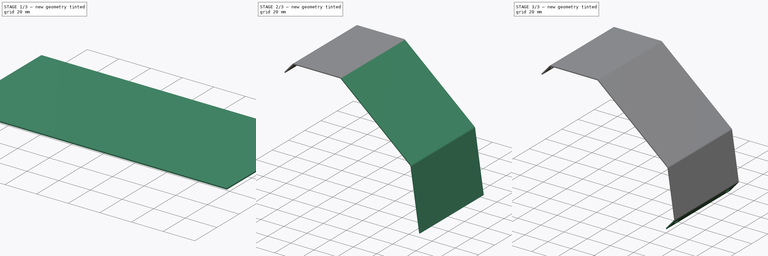
[diagram: build sequence overview — one tinted view per stage of 3, left to right]
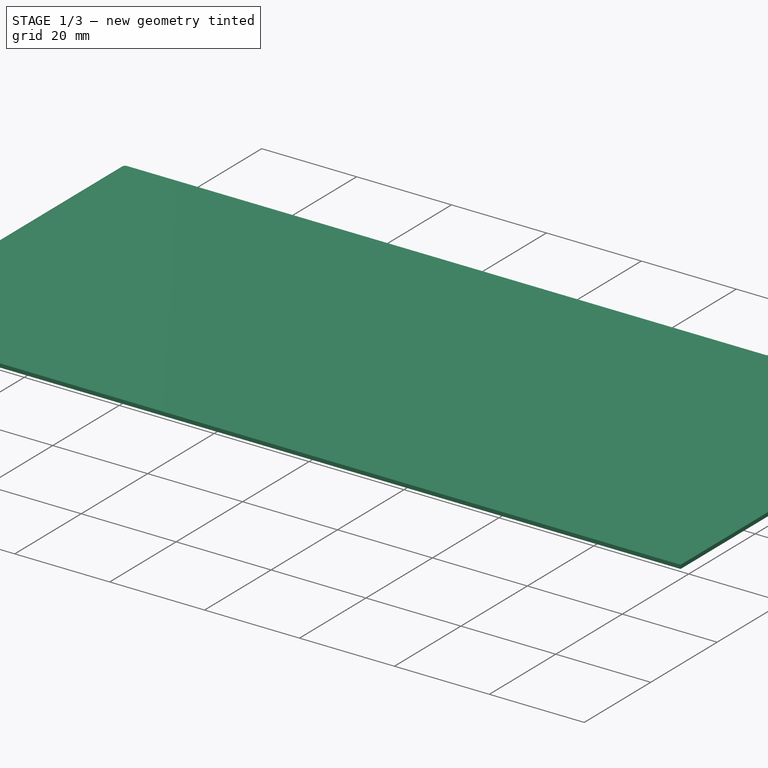
[diagram: stage 1 of 3 — iso view after this stage's code; geometry added in this stage tinted green]
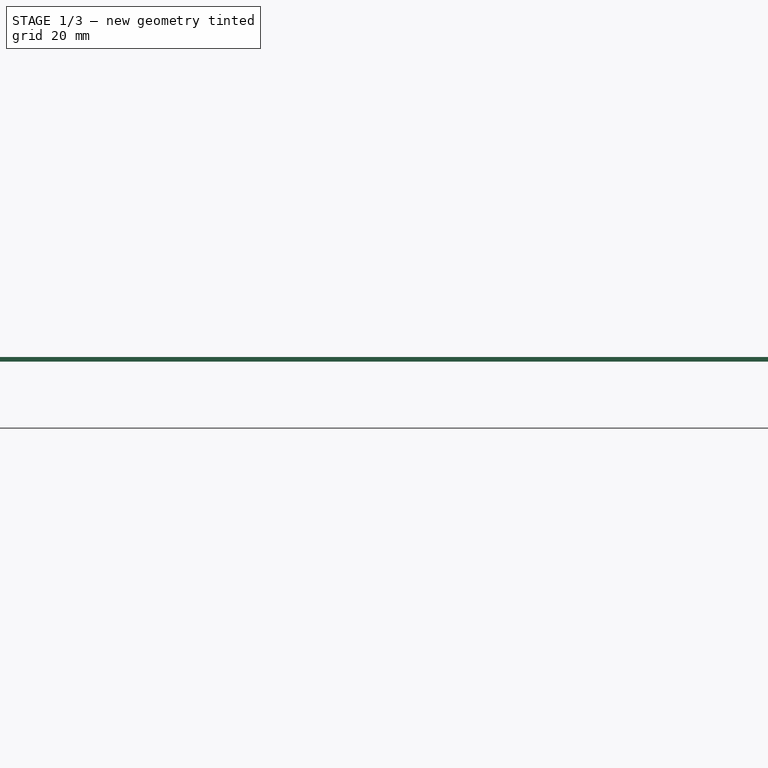
[diagram: stage 1 of 3 — front view after this stage's code; geometry added in this stage tinted green]
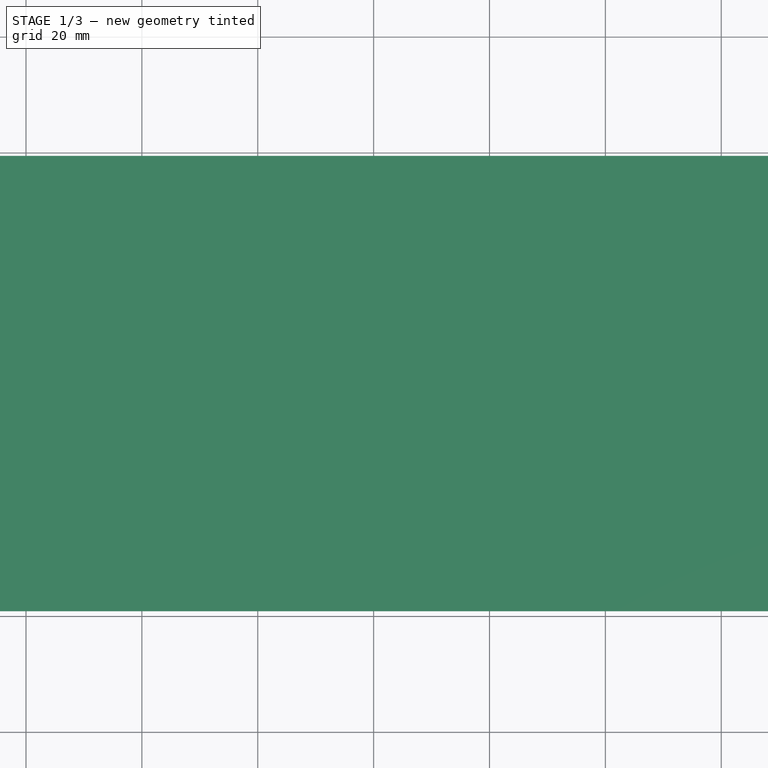
[diagram: stage 1 of 3 — top view after this stage's code; geometry added in this stage tinted green]
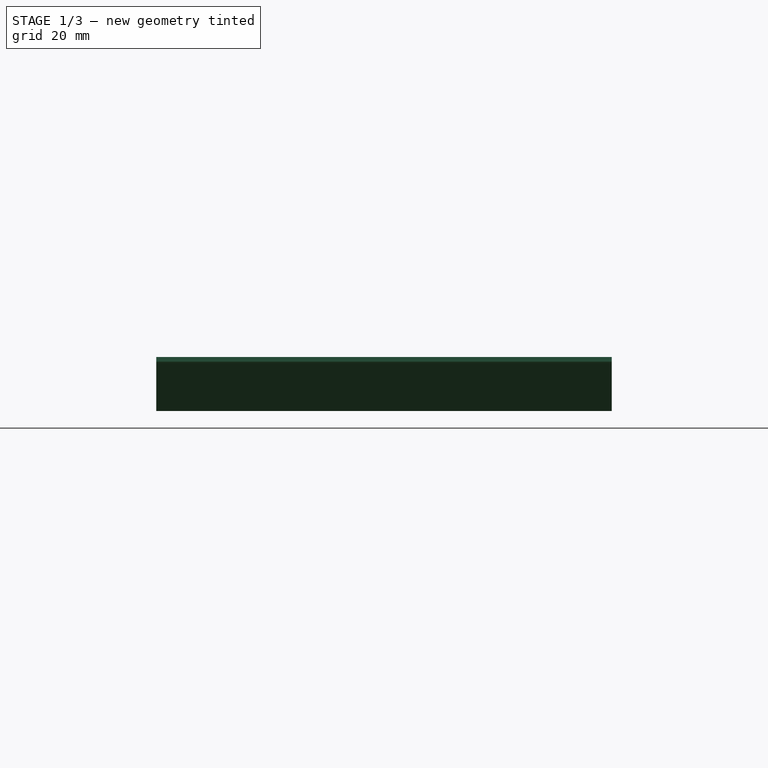
[diagram: stage 1 of 3 — right view after this stage's code; geometry added in this stage tinted green]
FCSTD DOCUMENT  (FreeCAD 0.19R24291 (Git))
Label: canopy
License: All rights reserved
LicenseURL: http://en.wikipedia.org/wiki/All_rights_reserved
objects: Sketcher::SketchObject×7, PartDesign::FeaturePython×5, PartDesign::Pocket×1, PartDesign::Body×1, Part::Feature×1
note: 16 computed .brp shape members not serialized (recipe doc carries the construction recipe); baked Part::Feature solids carry a one-line shape summary decoded from their .brp

FEATURE [Sketcher::SketchObject] Sketch002  label="canopy_outline"
  FullyConstrained = true
  MapMode = 5
  sketch-geometry (12):
    g0: LineSegment StartX=-40 StartY=39.3 StartZ=0 EndX=40 EndY=39.3 EndZ=0
    g1: LineSegment StartX=79.81 StartY=39.3 StartZ=0 EndX=91.81 EndY=39.3 EndZ=0
    g2: LineSegment StartX=-40 StartY=39.3 StartZ=0 EndX=-79.81 EndY=39.3 EndZ=0
    g3: LineSegment StartX=40 StartY=39.3 StartZ=0 EndX=79.81 EndY=39.3 EndZ=0
    g4: LineSegment StartX=-79.81 StartY=39.3 StartZ=0 EndX=-91.81 EndY=39.3 EndZ=0
    g5: LineSegment StartX=-40 StartY=-39.3 StartZ=0 EndX=40 EndY=-39.3 EndZ=0
    g6: LineSegment StartX=79.81 StartY=-39.3 StartZ=0 EndX=91.81 EndY=-39.3 EndZ=0
    g7: LineSegment StartX=-40 StartY=-39.3 StartZ=0 EndX=-79.81 EndY=-39.3 EndZ=0
    g8: LineSegment StartX=40 StartY=-39.3 StartZ=0 EndX=79.81 EndY=-39.3 EndZ=0
    g9: LineSegment StartX=-79.81 StartY=-39.3 StartZ=0 EndX=-91.81 EndY=-39.3 EndZ=0
    g10: LineSegment StartX=-91.81 StartY=39.3 StartZ=0 EndX=-91.81 EndY=-39.3 EndZ=0
    g11: LineSegment StartX=91.81 StartY=39.3 StartZ=0 EndX=91.81 EndY=-39.3 EndZ=0
  constraints (35):
    c: Coincident(g2,g0)
    c: Coincident(g3,g0)
    c: Coincident(g3,g1)
    c: Distance(g3) = 39.81
    c: Distance(g1) = 12
    c: DistanceX(g0,g0) = 80
    c: Distance(g2) = 39.81
    c: Horizontal(g1)
    c: Horizontal(g3)
    c: Horizontal(g0)
    c: Horizontal(g2)
    c: Coincident(g4,g2)
    c: Horizontal(g4)
    c: DistanceX(g4,g4) = 12
    c: Coincident(g7,g5)
    c: Coincident(g8,g5)
    c: Coincident(g8,g6)
    c: Equal(g3,g8) = 39.81
    c: Equal(g1,g6) = 10
    c: Equal(g0,g5) = 80
    c: Equal(g2,g7) = 39.81
    c: Horizontal(g6)
    c: Horizontal(g8)
    c: Horizontal(g5)
    c: Horizontal(g7)
    c: Coincident(g9,g7)
    c: Horizontal(g9)
    c: Equal(g4,g9) = 10
    c: Vertical(g4,g9)
    c: Coincident(g10,g4)
    c: Coincident(g10,g9)
    c: Coincident(g11,g1)
    c: Coincident(g11,g6)
    c: DistanceY(g10,g10) = 78.6
    c: Symmetric(g1,g9,g-1)
FEATURE [PartDesign::FeaturePython] BaseBend  # WARN: FeaturePython — macro-defined, semantics opaque (R4)
  BendSide = 0
  BendSketch = -> Sketch002
  MidPlane = false
  Reverse = false
  length = 100
  radius = 1
  thickness = 0.8
FEATURE [Sketcher::SketchObject] Sketch
  ExternalGeometry = -> [BaseBend]
  FullyConstrained = true
  MapMode = 5
  Placement = pos=(0,0,0) rot=(1,0,0;3.14159rad)
  Support = -> [BaseBend]
  sketch-geometry (1):
    g0: LineSegment StartX=-79.81 StartY=39.3 StartZ=0 EndX=-79.81 EndY=-39.3 EndZ=0
  constraints (2):
    c: Coincident(g0,g-3)
    c: Coincident(g0,g-4)
FEATURE [Sketcher::SketchObject] Sketch003
  ExternalGeometry = -> [BaseBend]
  FullyConstrained = true
  MapMode = 5
  Placement = pos=(0,0,0) rot=(1,0,0;3.14159rad)
  Support = -> [BaseBend]
  sketch-geometry (1):
    g0: LineSegment StartX=-40 StartY=39.3 StartZ=0 EndX=-40 EndY=-39.3 EndZ=0
  constraints (2):
    c: Coincident(g0,g-4)
    c: Coincident(g0,g-3)
FEATURE [PartDesign::FeaturePython] Fold  # WARN: FeaturePython — macro-defined, semantics opaque (R4)
  BaseFeature = -> BaseBend
  BendLine = -> Sketch
  Position = 0
  angle = 49.23
  baseObject = -> BaseBend [Face13]
  invert = false
  invertbend = false
  kfactor = 0.5
  radius = 1
  unfold = false
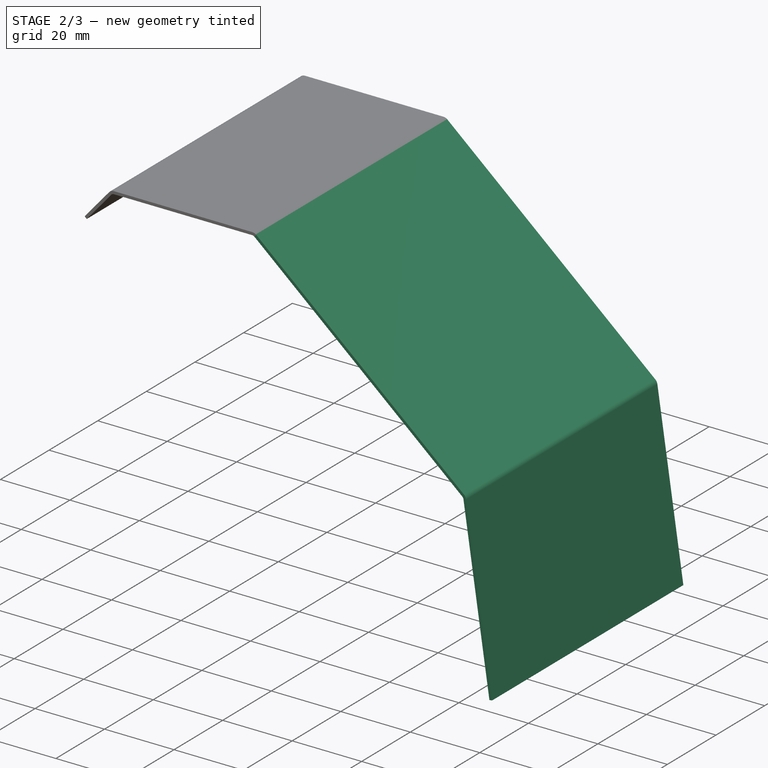
[diagram: stage 2 of 3 — iso view after this stage's code; geometry added in this stage tinted green]
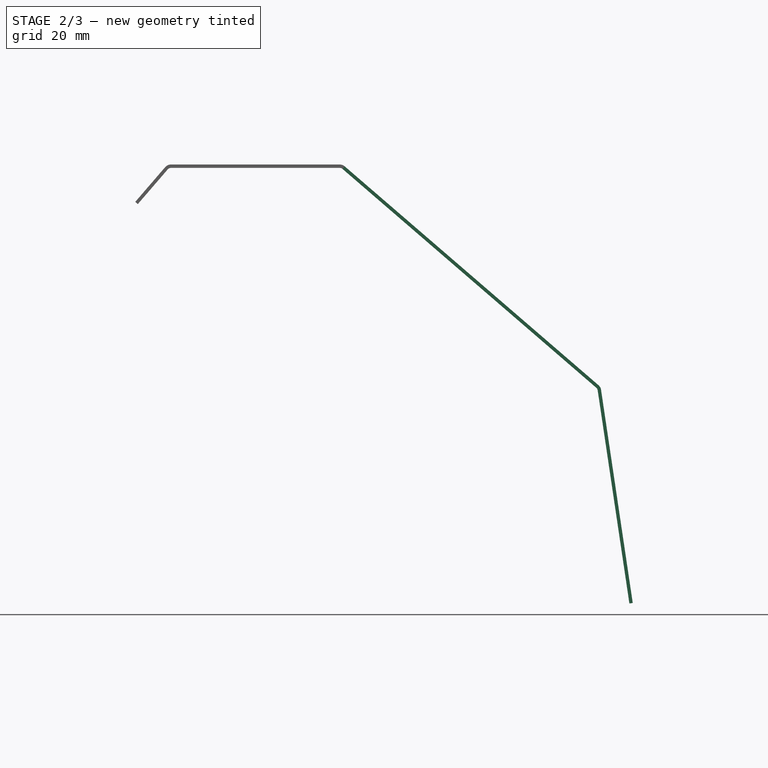
[diagram: stage 2 of 3 — front view after this stage's code; geometry added in this stage tinted green]
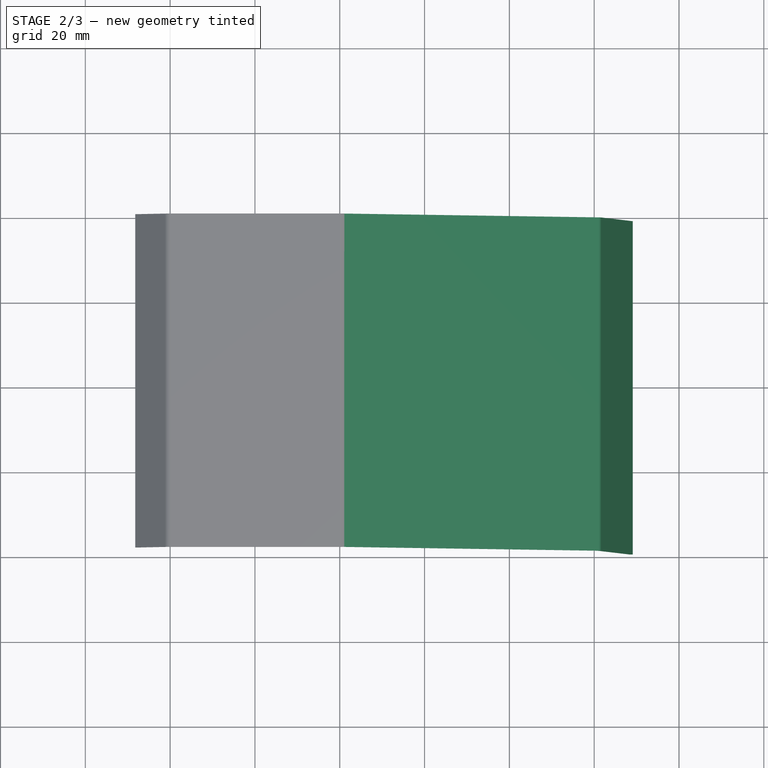
[diagram: stage 2 of 3 — top view after this stage's code; geometry added in this stage tinted green]
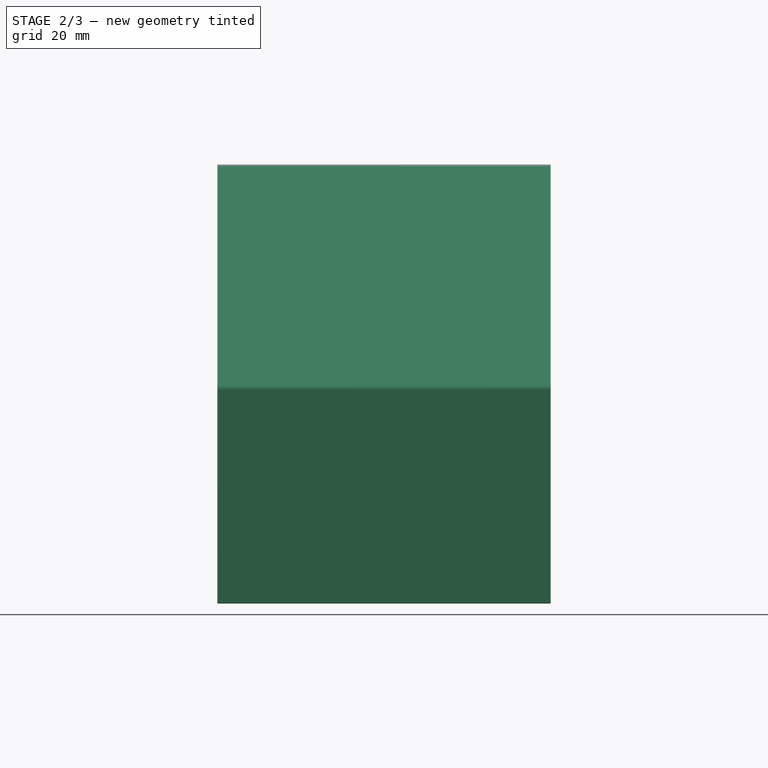
[diagram: stage 2 of 3 — right view after this stage's code; geometry added in this stage tinted green]
FEATURE [PartDesign::FeaturePython] Fold001  # WARN: FeaturePython — macro-defined, semantics opaque (R4)
  BaseFeature = -> Fold
  BendLine = -> Sketch003
  Position = 0
  angle = 40.77
  baseObject = -> Fold [Face3]
  invert = false
  invertbend = false
  kfactor = 0.5
  radius = 1
  unfold = false
FEATURE [Sketcher::SketchObject] Sketch004
  ExternalGeometry = -> [Fold001]
  FullyConstrained = true
  MapMode = 5
  Placement = pos=(-16.8992,-5.61e-14,-19.5986) rot=(0.937373,0,-0.348327;3.14159rad)
  Support = -> [Fold001]
  sketch-geometry (1):
    g0: LineSegment StartX=49.3633 StartY=39.3 StartZ=0 EndX=49.3633 EndY=-39.3 EndZ=0
  constraints (2):
    c: Coincident(g0,g-4)
    c: Coincident(g0,g-3)
FEATURE [PartDesign::FeaturePython] Fold002  # WARN: FeaturePython — macro-defined, semantics opaque (R4)
  BaseFeature = -> Fold001
  BendLine = -> Sketch004
  Position = 0
  angle = 40.77
  baseObject = -> Fold001 [Face4]
  invert = false
  invertbend = false
  kfactor = 0.5
  radius = 1
  unfold = false
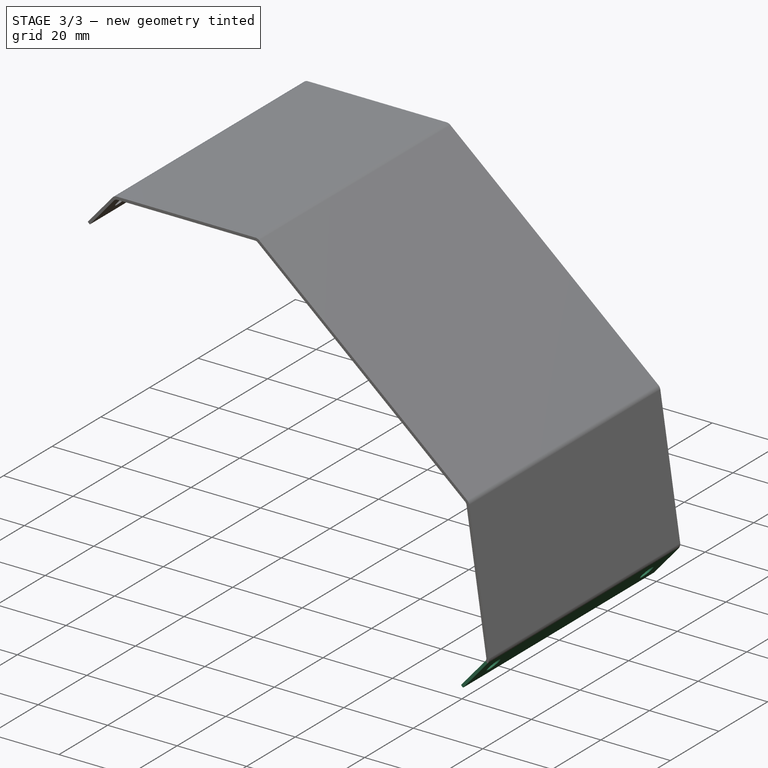
[diagram: stage 3 of 3 — iso view after this stage's code; geometry added in this stage tinted green]
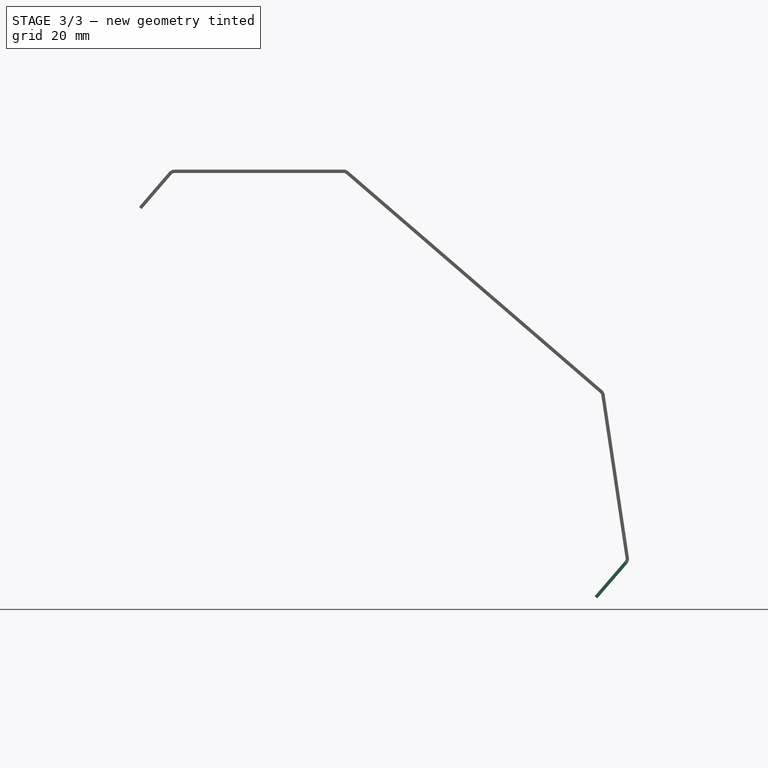
[diagram: stage 3 of 3 — front view after this stage's code; geometry added in this stage tinted green]
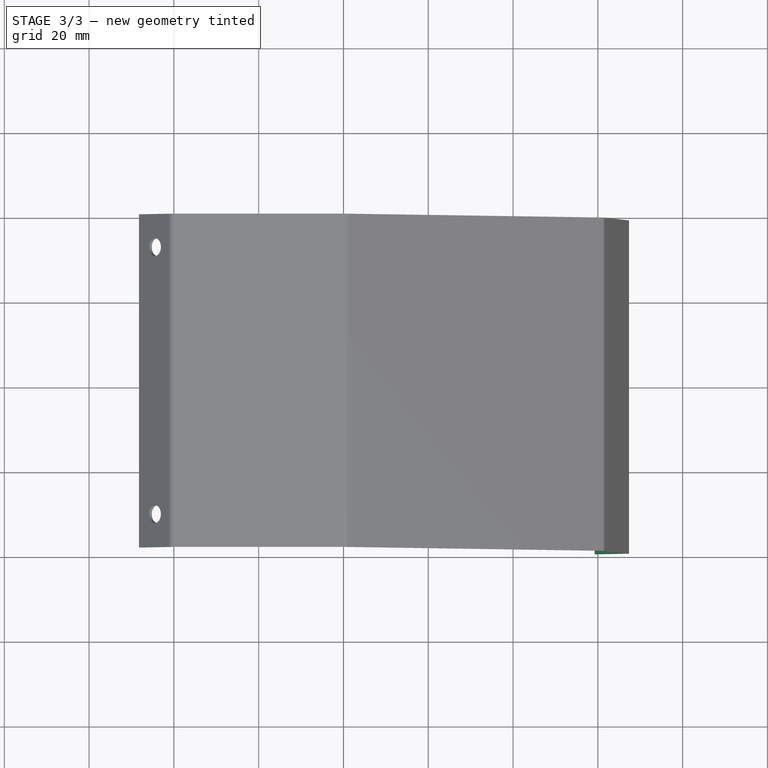
[diagram: stage 3 of 3 — top view after this stage's code; geometry added in this stage tinted green]
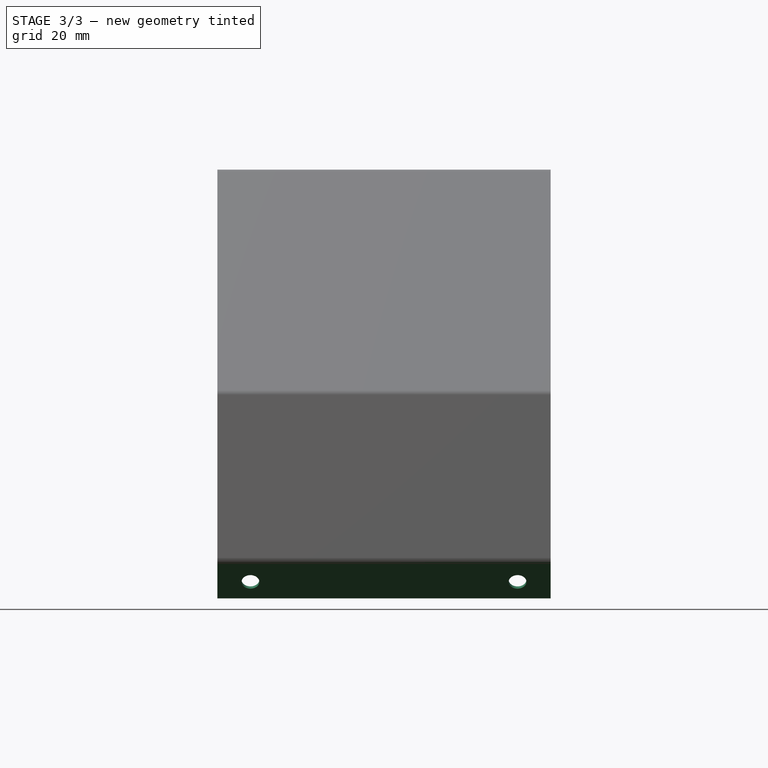
[diagram: stage 3 of 3 — right view after this stage's code; geometry added in this stage tinted green]
FEATURE [Sketcher::SketchObject] Sketch005
  ExternalGeometry = -> [Fold002]
  FullyConstrained = true
  MapMode = 5
  Placement = pos=(12.7394,5.54e-14,1.89482) rot=(0.603737,-0.603737,-0.52058;2.18164rad)
  Support = -> [Fold002]
  sketch-geometry (1):
    g0: LineSegment StartX=-39.3 StartY=-93.7507 StartZ=0 EndX=39.3 EndY=-93.7507 EndZ=0
  constraints (2):
    c: Coincident(g0,g-3)
    c: Coincident(g0,g-4)
FEATURE [PartDesign::FeaturePython] Fold003  # WARN: FeaturePython — macro-defined, semantics opaque (R4)
  BaseFeature = -> Fold002
  BendLine = -> Sketch005
  Position = 0
  angle = 49.23
  baseObject = -> Fold002 [Face4]
  invert = false
  invertbend = false
  kfactor = 0.5
  radius = 1
  unfold = false
FEATURE [Sketcher::SketchObject] Sketch006
  ExternalGeometry = -> [Fold003]
  FullyConstrained = true
  MapMode = 5
  Placement = pos=(-46.6444,0,40.2198) rot=(0.384499,-0.384499,-0.839238;1.74517rad)
  Support = -> [Fold003]
  sketch-geometry (2):
    g0: Circle CenterX=31.5 CenterY=-57.8752 CenterZ=0 NormalX=0 NormalY=0 NormalZ=1 AngleXU=0 Radius=2.1
    g1: Circle CenterX=-31.5 CenterY=-57.8752 CenterZ=0 NormalX=0 NormalY=0 NormalZ=1 AngleXU=0 Radius=2.1
  constraints (6):
    c: Radius(g0) = 2.1
    c: DistanceY(g0,g-4) = 5
    c: DistanceX(g0,g-4) = 7.8
    c: Radius(g1) = 2.1
    c: DistanceY(g1,g-5) = 5
    c: DistanceX(g-5,g1) = 7.8
FEATURE [PartDesign::Pocket] Pocket
  BaseFeature = -> Fold003
  Length = 5
  Length2 = 100
  Profile = -> Sketch006
  Type = 1
FEATURE [PartDesign::Body] Body
  Group = -> [Sketch002,BaseBend,Sketch,Sketch003,Fold,Fold001,Sketch004,Fold002,Sketch005,Fold003,Sketch006,Pocket]
  Origin = -> Origin
  Tip = -> Pocket
FEATURE [Part::Feature] Unfold
  shape: bbox 139.4 x 78.6 x 120.4 mm, 10 faces (baked)
FEATURE [Sketcher::SketchObject] Unfold_Sketch
  FullyConstrained = false
  sketch-geometry (28):
    g0: LineSegment StartX=101.048 StartY=39.3 StartZ=0 EndX=101.048 EndY=-39.3 EndZ=0
    g1: LineSegment StartX=-82.321 StartY=39.3 StartZ=0 EndX=-82.321 EndY=-39.3 EndZ=0
    g2: Circle CenterX=-76.5239 CenterY=-31.5 CenterZ=0 NormalX=0 NormalY=0 NormalZ=1 AngleXU=-1.5708 Radius=2.1
    g3: Circle CenterX=-76.5239 CenterY=31.5 CenterZ=0 NormalX=0 NormalY=0 NormalZ=1 AngleXU=-1.5708 Radius=2.1
    g4: Circle CenterX=95.9011 CenterY=-31.5 CenterZ=0 NormalX=0 NormalY=0 NormalZ=-1 AngleXU=-1.5708 Radius=2.1
    g5: Circle CenterX=95.9011 CenterY=31.5 CenterZ=0 NormalX=0 NormalY=0 NormalZ=-1 AngleXU=-1.5708 Radius=2.1
    g6: LineSegment StartX=-71.5239 StartY=39.3 StartZ=0 EndX=-82.321 EndY=39.3 EndZ=0
    g7: BSplineCurve PolesCount=15 KnotsCount=13 Degree=3 IsPeriodic=0
    g8: LineSegment StartX=-30.5797 StartY=39.3 StartZ=0 EndX=-70.3897 EndY=39.3 EndZ=0
    g9: BSplineCurve PolesCount=15 KnotsCount=13 Degree=3 IsPeriodic=0
    g10: LineSegment StartX=-29.6405 StartY=39.3 StartZ=0 EndX=49.3633 EndY=39.3 EndZ=0
    g11: BSplineCurve PolesCount=15 KnotsCount=13 Degree=3 IsPeriodic=0
    g12: LineSegment StartX=50.3026 StartY=39.3 StartZ=0 EndX=89.1164 EndY=39.3 EndZ=0
    g13: BSplineCurve PolesCount=15 KnotsCount=13 Degree=3 IsPeriodic=0
    g14: LineSegment StartX=90.2506 StartY=39.3 StartZ=0 EndX=101.048 EndY=39.3 EndZ=0
    g15: LineSegment StartX=-71.5239 StartY=-39.3 StartZ=0 EndX=-82.321 EndY=-39.3 EndZ=0
    g16: BSplineCurve PolesCount=15 KnotsCount=13 Degree=3 IsPeriodic=0
    g17: LineSegment StartX=-30.5797 StartY=-39.3 StartZ=0 EndX=-70.3897 EndY=-39.3 EndZ=0
    g18: BSplineCurve PolesCount=15 KnotsCount=13 Degree=3 IsPeriodic=0
    g19: LineSegment StartX=-29.6405 StartY=-39.3 StartZ=0 EndX=49.3633 EndY=-39.3 EndZ=0
    g20: BSplineCurve PolesCount=15 KnotsCount=13 Degree=3 IsPeriodic=0
    g21: LineSegment StartX=50.3026 StartY=-39.3 StartZ=0 EndX=89.1164 EndY=-39.3 EndZ=0
    g22: BSplineCurve PolesCount=15 KnotsCount=13 Degree=3 IsPeriodic=0
    g23: LineSegment StartX=90.2506 StartY=-39.3 StartZ=0 EndX=101.048 EndY=-39.3 EndZ=0
    g24: LineSegment StartX=89.6835 StartY=-39.3 StartZ=0 EndX=89.6835 EndY=39.3 EndZ=0
    g25: LineSegment StartX=49.833 StartY=-39.3 StartZ=0 EndX=49.833 EndY=39.3 EndZ=0
    g26: LineSegment StartX=-70.9568 StartY=39.3 StartZ=0 EndX=-70.9568 EndY=-39.3 EndZ=0
    g27: LineSegment StartX=-30.1101 StartY=-39.3 StartZ=0 EndX=-30.1101 EndY=39.3 EndZ=0
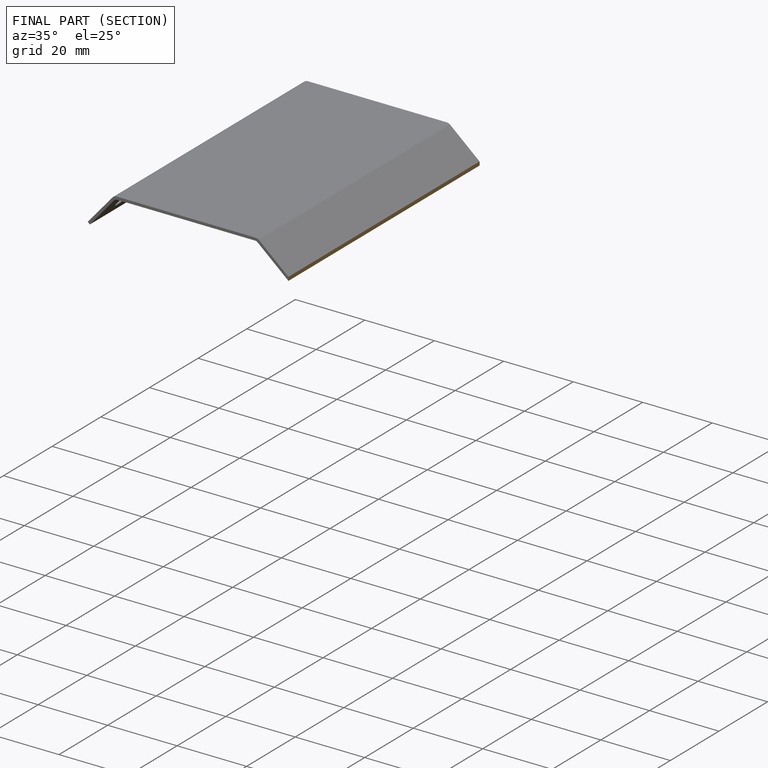
[diagram: finished part — half-section view (interior)]
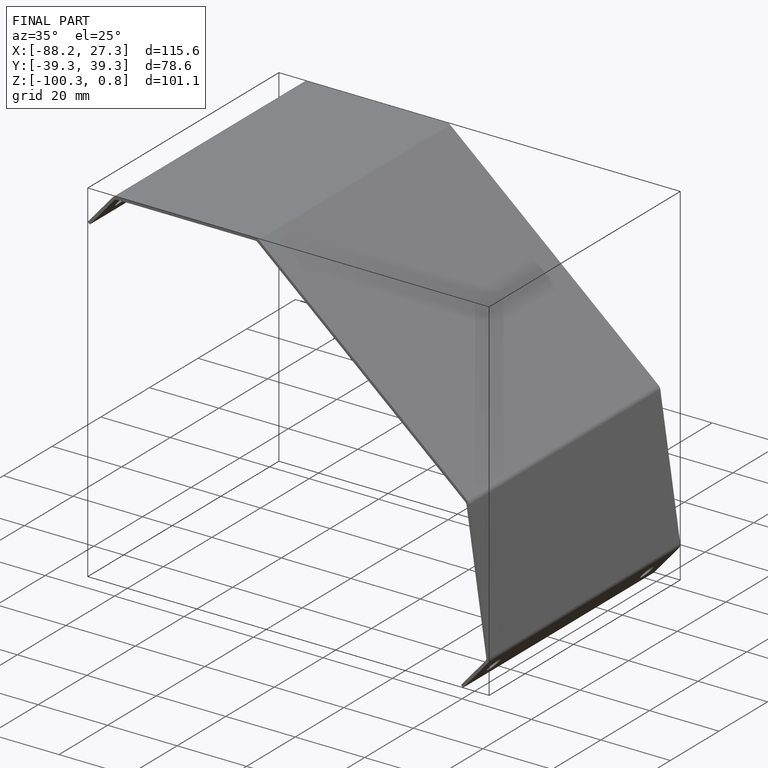
[diagram: finished part — iso view with bounding-box wireframe]
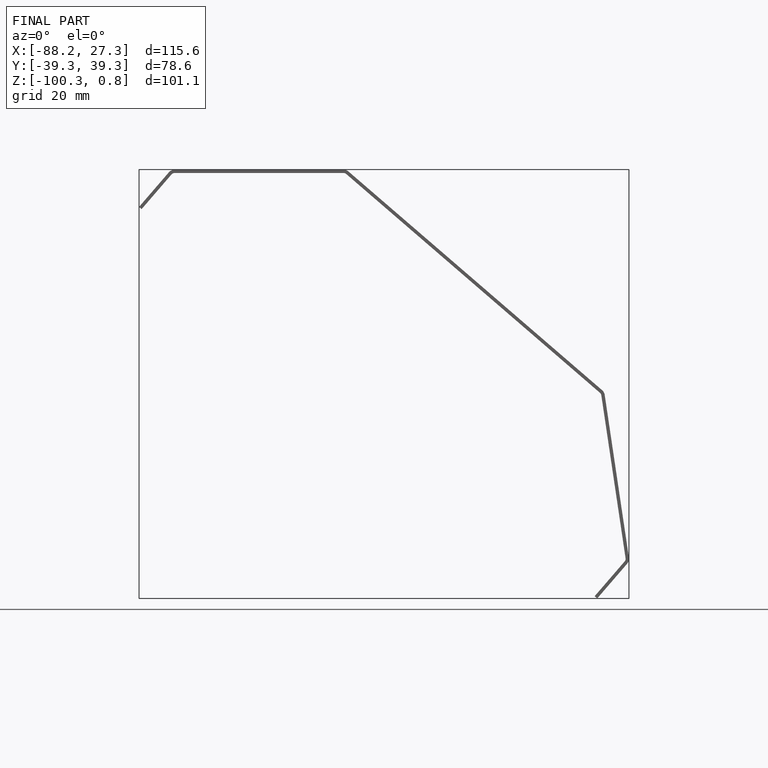
[diagram: finished part — front view with bounding-box wireframe]
